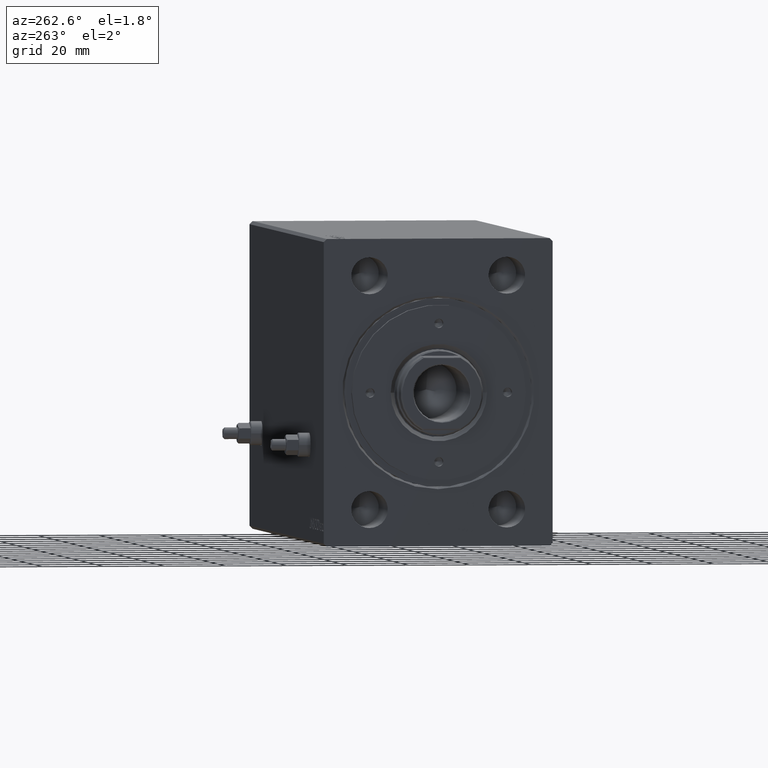
[diagram: clean part render]
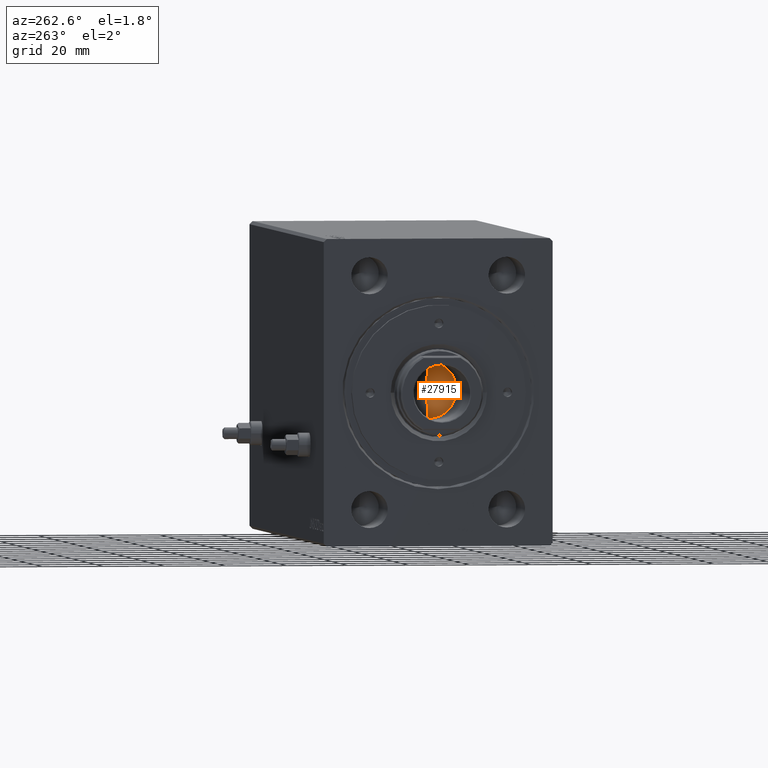
[diagram: same view with one face highlighted and labeled with its STEP entity id]
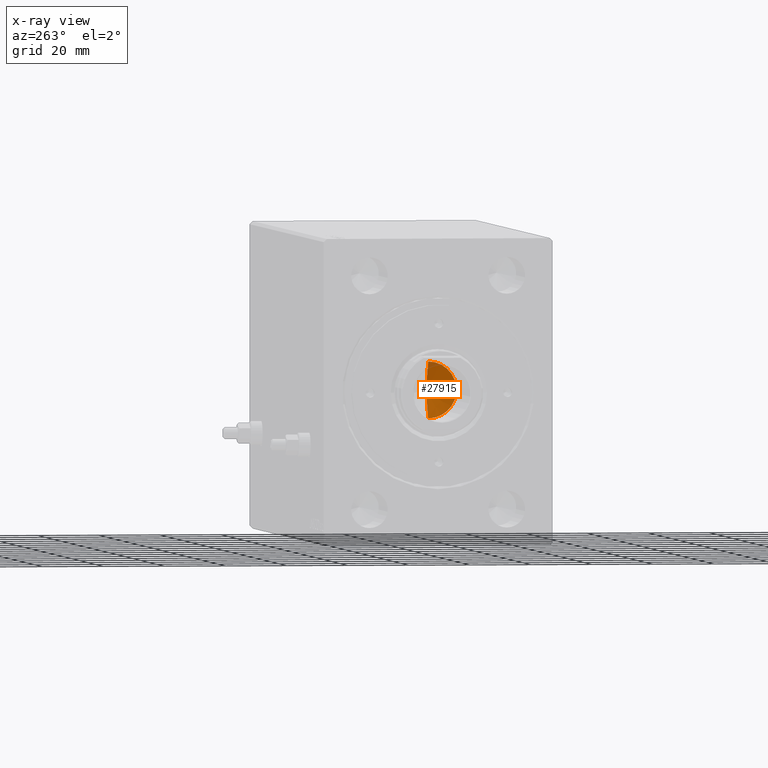
[diagram: x-ray of the same camera — body ghosted, the highlighted face saturated]
A machine part, auxiliary view. The second image highlights one B-rep face of the part: STEP entity #27915.
The next image is the same camera in x-ray: the body ghosted, the highlighted face saturated — about 4% of this face is hidden behind the body in this view.
In plain terms, the highlighted conical surface has half-angle 59 deg.
Its self-contained STEP definition (entity closure, byte-faithful):
#887 = VERTEX_POINT ( 'NONE', #16618 ) ;
#2999 = CARTESIAN_POINT ( 'NONE',  ( 0.000000000000000000, 0.000000000000000000, 144.1999999999999886 ) ) ;
#3062 = ORIENTED_EDGE ( 'NONE', *, *, #44253, .T. ) ;
#6659 = LINE ( 'NONE', #20534, #19774 ) ;
#7007 = CONICAL_SURFACE ( 'NONE', #32454, 9.249999999999994671, 1.029744258676652313 ) ;
#8009 = VERTEX_POINT ( 'NONE', #17935 ) ;
#8614 = DIRECTION ( 'NONE',  ( 1.000000000000000000, 0.000000000000000000, 0.000000000000000000 ) ) ;
#9006 = AXIS2_PLACEMENT_3D ( 'NONE', #2999, #20296, #23933 ) ;
#12027 = DIRECTION ( 'NONE',  ( -0.000000000000000000, -0.000000000000000000, 1.000000000000000000 ) ) ;
#12900 = CARTESIAN_POINT ( 'NONE',  ( -1.046994375366439223E-14, 0.000000000000000000, 138.6420392739950387 ) ) ;
#14735 = DIRECTION ( 'NONE',  ( -0.8571673007021112234, 1.049727191138617340E-16, 0.5150380749100560429 ) ) ;
#16618 = CARTESIAN_POINT ( 'NONE',  ( 9.249999999999994671, 0.000000000000000000, 144.1999999999999886 ) ) ;
#17021 = ORIENTED_EDGE ( 'NONE', *, *, #29976, .F. ) ;
#17935 = CARTESIAN_POINT ( 'NONE',  ( -9.249999999999994671, 1.132798289211300909E-15, 144.1999999999999886 ) ) ;
#18377 = LINE ( 'NONE', #31828, #28385 ) ;
#19759 = FACE_OUTER_BOUND ( 'NONE', #41447, .T. ) ;
#19774 = VECTOR ( 'NONE', #34442, 1000.000000000000000 ) ;
#20296 = DIRECTION ( 'NONE',  ( -0.000000000000000000, -0.000000000000000000, 1.000000000000000000 ) ) ;
#20534 = CARTESIAN_POINT ( 'NONE',  ( 9.249999999999994671, 0.000000000000000000, 144.1999999999999886 ) ) ;
#22088 = ORIENTED_EDGE ( 'NONE', *, *, #24484, .T. ) ;
#23159 = CARTESIAN_POINT ( 'NONE',  ( 0.000000000000000000, 0.000000000000000000, 144.1999999999999886 ) ) ;
#23933 = DIRECTION ( 'NONE',  ( 1.000000000000000000, 0.000000000000000000, 0.000000000000000000 ) ) ;
#24484 = EDGE_CURVE ( 'NONE', #8009, #887, #33754, .T. ) ;
#27915 = ADVANCED_FACE ( 'NONE', ( #19759 ), #7007, .F. ) ;
#28385 = VECTOR ( 'NONE', #14735, 1000.000000000000000 ) ;
#28412 = VERTEX_POINT ( 'NONE', #12900 ) ;
#29976 = EDGE_CURVE ( 'NONE', #28412, #887, #6659, .T. ) ;
#31828 = CARTESIAN_POINT ( 'NONE',  ( -9.249999999999994671, 1.132798289211300909E-15, 144.1999999999999886 ) ) ;
#32454 = AXIS2_PLACEMENT_3D ( 'NONE', #23159, #12027, #8614 ) ;
#33754 = CIRCLE ( 'NONE', #9006, 9.249999999999994671 ) ;
#34442 = DIRECTION ( 'NONE',  ( 0.8571673007021112234, 0.000000000000000000, 0.5150380749100560429 ) ) ;
#41447 = EDGE_LOOP ( 'NONE', ( #17021, #3062, #22088 ) ) ;
#44253 = EDGE_CURVE ( 'NONE', #28412, #8009, #18377, .T. ) ;